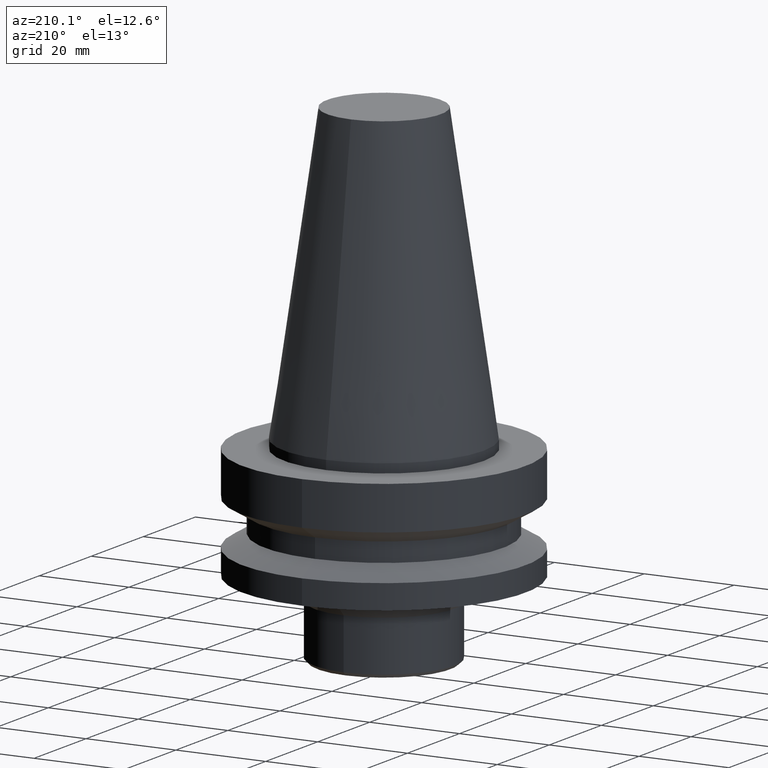
[diagram: clean part render]
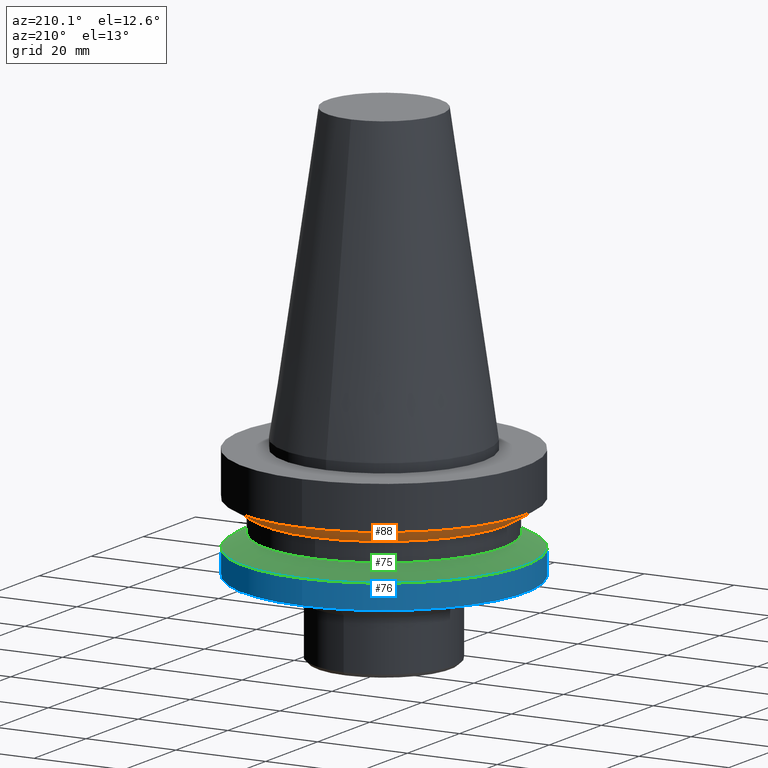
[diagram: same view with three faces highlighted in distinct colors, each labeled with its STEP entity id]
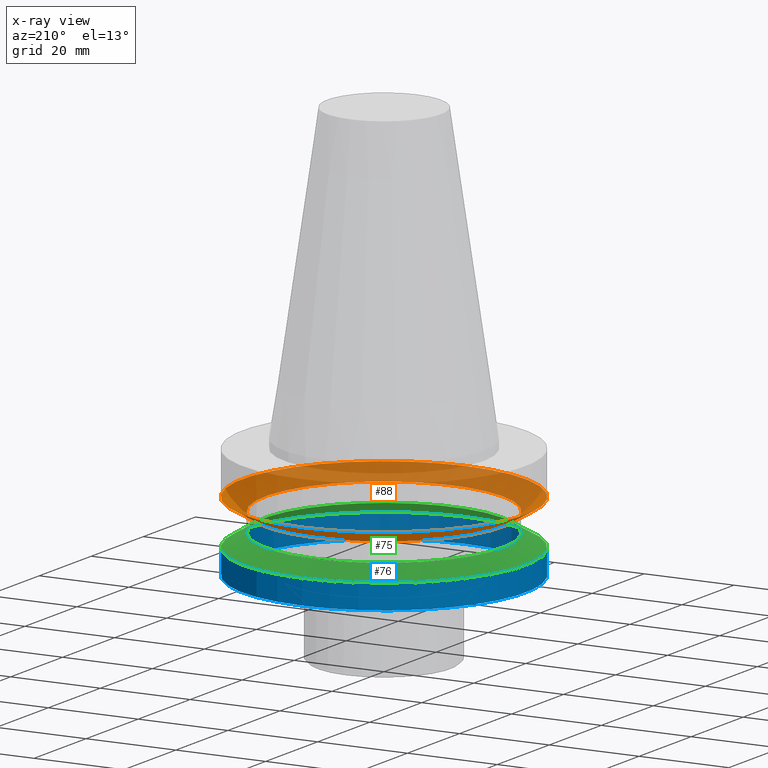
[diagram: x-ray of the same camera — body ghosted, the three highlighted faces saturated]
A machine part, auxiliary view with three faces highlighted in distinct colors.
The next image is the same camera in x-ray (body ghosted, the three faces saturated) — at least one of them is partly hidden behind the body in this view.
Their STEP definitions:

[orange] entity #88 — the highlighted conical surface has half-angle 60 deg.
#88=ADVANCED_FACE('',(#127,#128),#129,.T.);
#127=FACE_BOUND('',#167,.T.);
#128=FACE_BOUND('',#168,.T.);
#129=CONICAL_SURFACE('',#169,29.0,1.04719757802265);
#167=EDGE_LOOP('',(#233));
#168=EDGE_LOOP('',(#234));
#169=AXIS2_PLACEMENT_3D('',#235,#236,#237);
#233=ORIENTED_EDGE('',*,*,#245,.F.);
#234=ORIENTED_EDGE('',*,*,#250,.T.);
#235=CARTESIAN_POINT('',(7.98676430451513E-016,1.59735286090303E-015,-13.0433759514594));
#236=DIRECTION('',(-6.12323399573677E-017,-1.22464679914735E-016,1.0));
#237=DIRECTION('',(-1.23259516440783E-032,1.0,1.22464679914735E-016));
#245=EDGE_CURVE('',#265,#265,#266,.T.);
#250=EDGE_CURVE('',#275,#275,#276,.T.);
#265=VERTEX_POINT('',#291);
#266=CIRCLE('',#292,26.5);
#275=VERTEX_POINT('',#301);
#276=CIRCLE('',#302,31.5);
#291=CARTESIAN_POINT('',(8.87057694869848E-016,26.5,-14.4867515350132));
#292=AXIS2_PLACEMENT_3D('',#324,#325,#326);
#301=CARTESIAN_POINT('',(7.10295166033177E-016,31.5,-11.6000003679055));
#302=AXIS2_PLACEMENT_3D('',#339,#340,#341);
#324=CARTESIAN_POINT('',(8.87057694869849E-016,1.7741153897397E-015,-14.4867515350132));
#325=DIRECTION('',(6.12323399573677E-017,1.22464679914735E-016,-1.0));
#326=DIRECTION('',(-1.23259516440783E-032,1.0,1.22464679914735E-016));
#339=CARTESIAN_POINT('',(7.10295166033177E-016,1.42059033206635E-015,-11.6000003679055));
#340=DIRECTION('',(6.12323399573677E-017,1.22464679914735E-016,-1.0));
#341=DIRECTION('',(-1.23259516440783E-032,1.0,1.22464679914735E-016));

[blue] entity #76 — the highlighted cylindrical surface (bore or boss wall) has radius 31.5 mm, axis along (-0, -0, 1).
#76=ADVANCED_FACE('',(#93,#94),#95,.T.);
#93=FACE_BOUND('',#133,.T.);
#94=FACE_BOUND('',#134,.T.);
#95=CYLINDRICAL_SURFACE('',#135,31.5);
#133=EDGE_LOOP('',(#175));
#134=EDGE_LOOP('',(#176));
#135=AXIS2_PLACEMENT_3D('',#177,#178,#179);
#175=ORIENTED_EDGE('',*,*,#240,.F.);
#176=ORIENTED_EDGE('',*,*,#238,.T.);
#177=CARTESIAN_POINT('',(1.48794584970018E-015,2.97589169940035E-015,-24.2999998160473));
#178=DIRECTION('',(-6.12323399573677E-017,-1.22464679914735E-016,1.0));
#179=DIRECTION('',(-1.23259516440783E-032,1.0,1.22464679914735E-016));
#238=EDGE_CURVE('',#251,#251,#252,.T.);
#240=EDGE_CURVE('',#255,#255,#256,.T.);
#251=VERTEX_POINT('',#277);
#252=CIRCLE('',#278,31.5);
#255=VERTEX_POINT('',#281);
#256=CIRCLE('',#282,31.5);
#277=CARTESIAN_POINT('',(1.32261852055143E-015,31.5,-21.5999996320945));
#278=AXIS2_PLACEMENT_3D('',#303,#304,#305);
#281=CARTESIAN_POINT('',(1.65327317884893E-015,31.5,-27.0));
#282=AXIS2_PLACEMENT_3D('',#309,#310,#311);
#303=CARTESIAN_POINT('',(1.32261852055143E-015,2.64523704110286E-015,-21.5999996320945));
#304=DIRECTION('',(6.12323399573677E-017,1.22464679914735E-016,-1.0));
#305=DIRECTION('',(-1.23259516440783E-032,1.0,1.22464679914735E-016));
#309=CARTESIAN_POINT('',(1.65327317884893E-015,3.30654635769785E-015,-27.0));
#310=DIRECTION('',(6.12323399573677E-017,1.22464679914735E-016,-1.0));
#311=DIRECTION('',(-1.23259516440783E-032,1.0,1.22464679914735E-016));

[green] entity #75 — the highlighted conical surface has half-angle 60 deg.
#75=ADVANCED_FACE('',(#90,#91),#92,.T.);
#90=FACE_BOUND('',#130,.T.);
#91=FACE_BOUND('',#131,.T.);
#92=CONICAL_SURFACE('',#132,29.0,1.04719757802265);
#130=EDGE_LOOP('',(#170));
#131=EDGE_LOOP('',(#171));
#132=AXIS2_PLACEMENT_3D('',#172,#173,#174);
#170=ORIENTED_EDGE('',*,*,#238,.F.);
#171=ORIENTED_EDGE('',*,*,#239,.T.);
#172=CARTESIAN_POINT('',(1.23423725613309E-015,2.46847451226618E-015,-20.1566240485406));
#173=DIRECTION('',(6.12323399573677E-017,1.22464679914735E-016,-1.0));
#174=DIRECTION('',(-1.23259516440783E-032,1.0,1.22464679914735E-016));
#238=EDGE_CURVE('',#251,#251,#252,.T.);
#239=EDGE_CURVE('',#253,#253,#254,.T.);
#251=VERTEX_POINT('',#277);
#252=CIRCLE('',#278,31.5);
#253=VERTEX_POINT('',#279);
#254=CIRCLE('',#280,26.5);
#277=CARTESIAN_POINT('',(1.32261852055143E-015,31.5,-21.5999996320945));
#278=AXIS2_PLACEMENT_3D('',#303,#304,#305);
#279=CARTESIAN_POINT('',(1.14585599171476E-015,26.5,-18.7132484649867));
#280=AXIS2_PLACEMENT_3D('',#306,#307,#308);
#303=CARTESIAN_POINT('',(1.32261852055143E-015,2.64523704110286E-015,-21.5999996320945));
#304=DIRECTION('',(6.12323399573677E-017,1.22464679914735E-016,-1.0));
#305=DIRECTION('',(-1.23259516440783E-032,1.0,1.22464679914735E-016));
#306=CARTESIAN_POINT('',(1.14585599171476E-015,2.29171198342951E-015,-18.7132484649867));
#307=DIRECTION('',(6.12323399573677E-017,1.22464679914735E-016,-1.0));
#308=DIRECTION('',(-1.23259516440783E-032,1.0,1.22464679914735E-016));